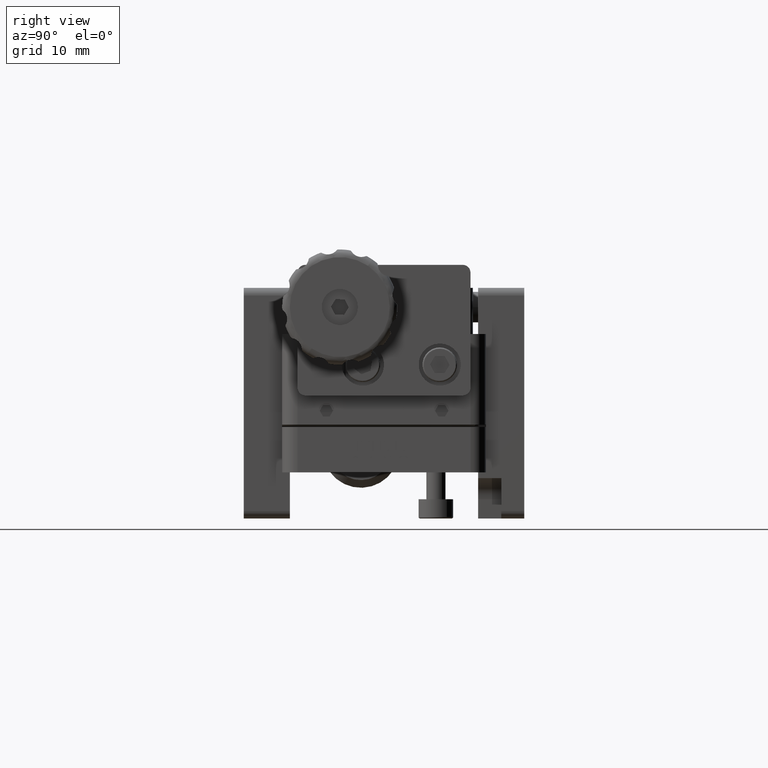
[diagram: clean part render]
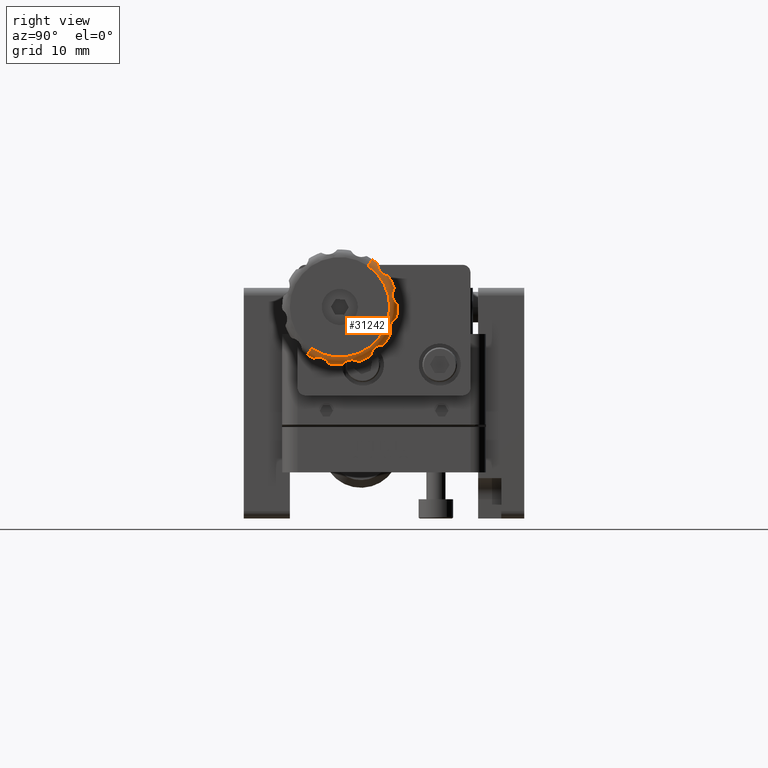
[diagram: same view with one face highlighted and labeled with its STEP entity id]
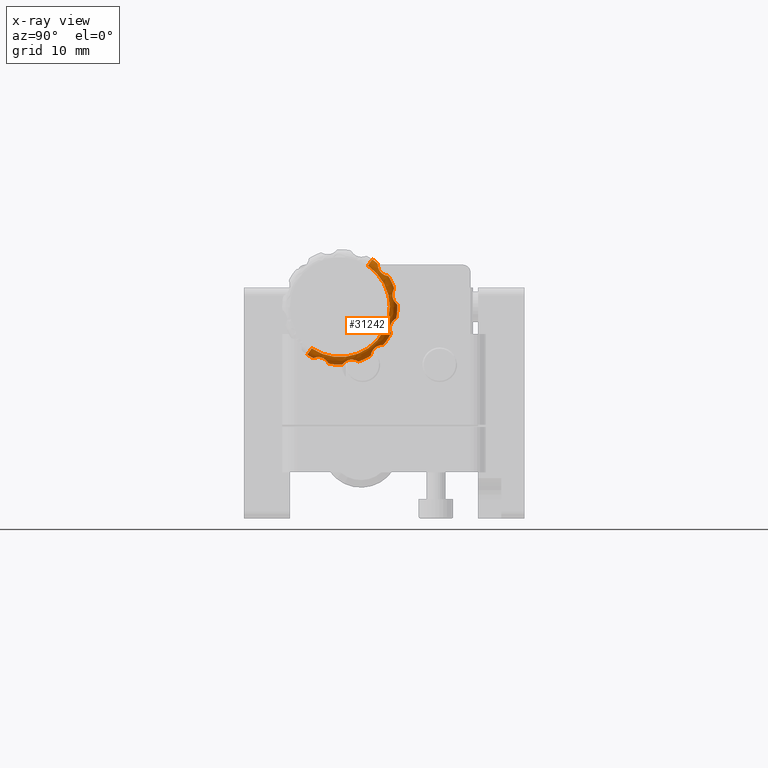
[diagram: x-ray of the same camera — body ghosted, the highlighted face saturated]
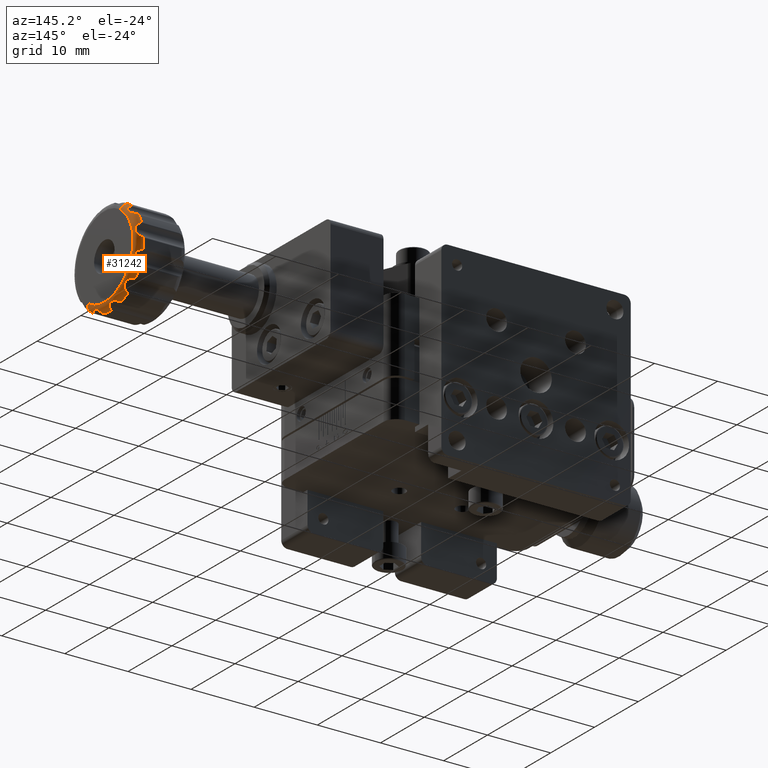
[diagram: same view with one face highlighted and labeled with its STEP entity id]
A machine part, right view. The second image highlights one B-rep face of the part: STEP entity #31242.
The next image is the same camera in x-ray: the body ghosted, the highlighted face saturated — about 0% of this face is hidden behind the body in this view.
A second angle (auxiliary view) of the same face is appended — the face is thin or edge-on in the first view.
In plain terms, the highlighted toroidal blend (fillet) surface has major radius 6.5 mm and minor (blend) radius 1 mm.
Its self-contained STEP definition (entity closure, byte-faithful):
#7 = AXIS2_PLACEMENT_3D ( 'NONE', #10917, #28545, #18712 ) ;
#24 = B_SPLINE_CURVE_WITH_KNOTS ( 'NONE', 3,
 ( #25732, #30857, #5509, #28514 ),
 .UNSPECIFIED., .F., .F.,
 ( 4, 4 ),
 ( 6.448693071016901200E-016, 0.0004984791478706792700 ),
 .UNSPECIFIED. ) ;
#126 = ORIENTED_EDGE ( 'NONE', *, *, #20117, .F. ) ;
#325 = CARTESIAN_POINT ( 'NONE',  ( 50.16904537260126800, -23.59500062500780300, 35.44446664674148200 ) ) ;
#349 = CARTESIAN_POINT ( 'NONE',  ( 50.60049018777925100, -19.52517849025036500, 39.17502042245652700 ) ) ;
#366 = CARTESIAN_POINT ( 'NONE',  ( 50.16904537260126800, -21.29999626743064300, 48.23051196961988300 ) ) ;
#799 = CARTESIAN_POINT ( 'NONE',  ( 50.46011198752854200, -25.77048156428244100, 35.03953087366645000 ) ) ;
#804 = VERTEX_POINT ( 'NONE', #17169 ) ;
#833 = CARTESIAN_POINT ( 'NONE',  ( 50.99632460469376100, -28.10303961517667700, 35.71696808971677200 ) ) ;
#952 = CARTESIAN_POINT ( 'NONE',  ( 50.39214108293384700, -27.57960638557849400, 35.16543595120887700 ) ) ;
#1089 = CARTESIAN_POINT ( 'NONE',  ( 50.60049018777726100, -20.63036654416813000, 37.55510338841912000 ) ) ;
#1262 = EDGE_CURVE ( 'NONE', #18862, #32531, #8280, .T. ) ;
#1292 = ORIENTED_EDGE ( 'NONE', *, *, #3401, .F. ) ;
#1309 = CARTESIAN_POINT ( 'NONE',  ( 50.39214108293419500, -19.83491864237948500, 46.51712542525034200 ) ) ;
#1420 = EDGE_CURVE ( 'NONE', #32092, #22801, #20999, .T. ) ;
#1453 = CARTESIAN_POINT ( 'NONE',  ( 51.01193507681020400, -24.45045151661879500, 35.65487715488198000 ) ) ;
#1462 = CARTESIAN_POINT ( 'NONE',  ( 50.60049018777726100, -19.10203308773572300, 44.79774541413245000 ) ) ;
#1615 = EDGE_CURVE ( 'NONE', #17596, #22311, #6144, .T. ) ;
#1691 = AXIS2_PLACEMENT_3D ( 'NONE', #2994, #10948, #15629 ) ;
#1770 = ORIENTED_EDGE ( 'NONE', *, *, #31752, .F. ) ;
#1851 = ORIENTED_EDGE ( 'NONE', *, *, #29030, .F. ) ;
#1938 = CARTESIAN_POINT ( 'NONE',  ( 50.96981170311330100, -27.99951427853631000, 35.64633795068569800 ) ) ;
#2263 = CARTESIAN_POINT ( 'NONE',  ( 50.60049018777726100, -18.89586977502315800, 40.97166654356745100 ) ) ;
#2339 = EDGE_CURVE ( 'NONE', #13054, #32531, #22846, .T. ) ;
#2373 = CARTESIAN_POINT ( 'NONE',  ( 51.01148057882246400, -19.62316622734966400, 39.80474111995735600 ) ) ;
#2408 = CARTESIAN_POINT ( 'NONE',  ( 50.97247948405712500, -28.95211478044966900, 35.98321542112125800 ) ) ;
#2455 = ORIENTED_EDGE ( 'NONE', *, *, #13582, .F. ) ;
#2458 = B_SPLINE_CURVE_WITH_KNOTS ( 'NONE', 3,
 ( #11884, #24601, #4579, #19453 ),
 .UNSPECIFIED., .F., .F.,
 ( 4, 4 ),
 ( -6.324575239446234800E-006, 0.0004951179910539752100 ),
 .UNSPECIFIED. ) ;
#2481 = CARTESIAN_POINT ( 'NONE',  ( 50.68224101903884800, -25.67693293768911300, 35.15134793966640100 ) ) ;
#2496 = B_SPLINE_CURVE_WITH_KNOTS ( 'NONE', 3,
 ( #8406, #26415, #31445, #3409 ),
 .UNSPECIFIED., .F., .F.,
 ( 4, 4 ),
 ( 6.379727130213211900E-016, 0.0004984791478706591000 ),
 .UNSPECIFIED. ) ;
#2597 = CARTESIAN_POINT ( 'NONE',  ( 50.75280766084129200, -18.99867417246400300, 40.90572252291493500 ) ) ;
#2650 = VERTEX_POINT ( 'NONE', #26854 ) ;
#2885 = ORIENTED_EDGE ( 'NONE', *, *, #21555, .T. ) ;
#2994 = CARTESIAN_POINT ( 'NONE',  ( 50.16904537260126800, -29.80178302574162400, 37.13060115729425100 ) ) ;
#3335 = EDGE_CURVE ( 'NONE', #30368, #27272, #12223, .T. ) ;
#3341 = CARTESIAN_POINT ( 'NONE',  ( 50.75239962412954500, -22.04988960691955300, 36.43316951863126700 ) ) ;
#3383 = DIRECTION ( 'NONE',  ( 0.0000000000000000000, -0.5635801884623344900, -0.8260613604162584400 ) ) ;
#3401 = EDGE_CURVE ( 'NONE', #13054, #27008, #10195, .T. ) ;
#3403 = CARTESIAN_POINT ( 'NONE',  ( 50.60049018777925100, -22.07368693893332800, 36.31381656353986600 ) ) ;
#3409 = CARTESIAN_POINT ( 'NONE',  ( 50.16904537260126800, -18.75648509170192900, 41.17497861636135100 ) ) ;
#3481 = CARTESIAN_POINT ( 'NONE',  ( 50.16904537260126800, -22.47524057573133800, 47.86939884270565700 ) ) ;
#3504 = CARTESIAN_POINT ( 'NONE',  ( 50.68165190946965700, -21.19239822335953600, 47.95489067153712900 ) ) ;
#3576 = CARTESIAN_POINT ( 'NONE',  ( 50.86793537588895500, -22.00258540970582600, 36.58269632667309400 ) ) ;
#3616 = CARTESIAN_POINT ( 'NONE',  ( 50.31494449543652100, -19.50428975326653700, 39.00089300807402300 ) ) ;
#4035 = CARTESIAN_POINT ( 'NONE',  ( 51.03498207220286500, -25.03077949484595200, 35.58532836630456600 ) ) ;
#4264 = CARTESIAN_POINT ( 'NONE',  ( 50.60049018777925100, -18.74870736138999700, 42.92714987402597200 ) ) ;
#4312 = B_SPLINE_CURVE_WITH_KNOTS ( 'NONE', 3,
 ( #12982, #27829, #7690, #20109 ),
 .UNSPECIFIED., .F., .F.,
 ( 4, 4 ),
 ( 6.236614380664838700E-016, 0.0004984791478706523800 ),
 .UNSPECIFIED. ) ;
#4313 = DIRECTION ( 'NONE',  ( 1.000000000000000000, 0.0000000000000000000, 0.0000000000000000000 ) ) ;
#4376 = ORIENTED_EDGE ( 'NONE', *, *, #14384, .F. ) ;
#4524 = CARTESIAN_POINT ( 'NONE',  ( 50.60049018777925100, -29.46349137827985500, 35.88666668951376700 ) ) ;
#4579 = CARTESIAN_POINT ( 'NONE',  ( 50.46011198752855600, -22.08955370343979800, 36.22305933067266200 ) ) ;
#4598 = CARTESIAN_POINT ( 'NONE',  ( 50.75280766084127700, -23.94927778243723200, 35.51958049647743100 ) ) ;
#4941 = CARTESIAN_POINT ( 'NONE',  ( 50.91226829902935700, -19.61066742712300800, 39.53038542861334300 ) ) ;
#4980 = AXIS2_PLACEMENT_3D ( 'NONE', #6727, #29625, #22032 ) ;
#5095 = ORIENTED_EDGE ( 'NONE', *, *, #9555, .T. ) ;
#5132 = VERTEX_POINT ( 'NONE', #30910 ) ;
#5466 = AXIS2_PLACEMENT_3D ( 'NONE', #25445, #20293, #30444 ) ;
#5486 = EDGE_CURVE ( 'NONE', #17321, #20948, #21605, .T. ) ;
#5509 = CARTESIAN_POINT ( 'NONE',  ( 50.31408226279491200, -19.05548231788506200, 44.96723871375557700 ) ) ;
#5554 = B_SPLINE_CURVE_WITH_KNOTS ( 'NONE', 3,
 ( #11301, #21461, #21564, #1309 ),
 .UNSPECIFIED., .F., .F.,
 ( 4, 4 ),
 ( -6.324575239399733500E-006, 0.0002498727217918352800 ),
 .UNSPECIFIED. ) ;
#5701 = DIRECTION ( 'NONE',  ( 0.0000000000000000000, 0.5635801884623296000, 0.8260613604162615500 ) ) ;
#5772 = FACE_OUTER_BOUND ( 'NONE', #30901, .T. ) ;
#5801 = CARTESIAN_POINT ( 'NONE',  ( 50.60049018777726100, -23.84076638660398500, 35.46352128699915300 ) ) ;
#5915 = CARTESIAN_POINT ( 'NONE',  ( 51.01193507681024600, -21.25404728901198200, 37.41597986616149300 ) ) ;
#5954 = CARTESIAN_POINT ( 'NONE',  ( 51.03498207220286500, -20.70409666007392600, 46.91666013434156900 ) ) ;
#6021 = CIRCLE ( 'NONE', #28354, 7.500000000000000900 ) ;
#6144 = B_SPLINE_CURVE_WITH_KNOTS ( 'NONE', 3,
 ( #2263, #20137, #2597, #25507, #7382, #9918, #30282, #15013, #2373, #4941, #18024, #15562, #28392, #349 ),
 .UNSPECIFIED., .F., .F.,
 ( 4, 2, 2, 2, 2, 2, 4 ),
 ( 0.0004549188434785094900, 0.0007454011220209221500, 0.001035883400563334900, 0.001616847957648188400, 0.002197812514733041700, 0.002488294793275478100, 0.002778777071817914500 ),
 .UNSPECIFIED. ) ;
#6155 = CARTESIAN_POINT ( 'NONE',  ( 50.86829444202244600, -21.16343476437226600, 47.73105611675166000 ) ) ;
#6364 = CARTESIAN_POINT ( 'NONE',  ( 51.16904537260126800, -22.47524057573133800, 47.86939884270565700 ) ) ;
#6390 = CARTESIAN_POINT ( 'NONE',  ( 50.68165190946965000, -19.12760645695630800, 44.75101710772937500 ) ) ;
#6489 = CARTESIAN_POINT ( 'NONE',  ( 50.60049018777925100, -19.52517849025036500, 39.17502042245652700 ) ) ;
#6627 = CIRCLE ( 'NONE', #4980, 7.499999999999999100 ) ;
#6723 = CARTESIAN_POINT ( 'NONE',  ( 50.75280766084130600, -19.15809229721396900, 44.68923401829923100 ) ) ;
#6727 = CARTESIAN_POINT ( 'NONE',  ( 50.16904537260126800, -26.13851180073648500, 42.49999999999995700 ) ) ;
#6907 = CARTESIAN_POINT ( 'NONE',  ( 50.16904537260126800, -19.08297844747804100, 45.04351117572864600 ) ) ;
#7080 = CARTESIAN_POINT ( 'NONE',  ( 50.16904537260126800, -26.13851180073648500, 42.49999999999995700 ) ) ;
#7161 = CARTESIAN_POINT ( 'NONE',  ( 51.01148057882242900, -25.21500167393547200, 35.50991577899113600 ) ) ;
#7188 = CARTESIAN_POINT ( 'NONE',  ( 50.31494449543745900, -18.64355347731774200, 42.78679547816566500 ) ) ;
#7305 = CARTESIAN_POINT ( 'NONE',  ( 51.03478024347618500, -28.32567299574864700, 35.84866642649171800 ) ) ;
#7382 = CARTESIAN_POINT ( 'NONE',  ( 50.91254583412553100, -19.18480918718328700, 40.74695103994014300 ) ) ;
#7529 = CARTESIAN_POINT ( 'NONE',  ( 50.16904537260126800, -18.64132128954509000, 42.70526675059696900 ) ) ;
#7690 = CARTESIAN_POINT ( 'NONE',  ( 50.31408226279511800, -20.46030565599765800, 37.59953588897454300 ) ) ;
#7798 = VERTEX_POINT ( 'NONE', #22065 ) ;
#7826 = CARTESIAN_POINT ( 'NONE',  ( 50.75239962412952400, -25.63107635509848900, 35.20165958577242500 ) ) ;
#8013 = DIRECTION ( 'NONE',  ( 0.0000000000000000000, -0.5635801884623294900, -0.8260613604162616600 ) ) ;
#8207 = EDGE_CURVE ( 'NONE', #21778, #20948, #31014, .T. ) ;
#8280 = CIRCLE ( 'NONE', #7, 7.500000000000000900 ) ;
#8393 = EDGE_CURVE ( 'NONE', #8888, #12401, #2458, .T. ) ;
#8406 = CARTESIAN_POINT ( 'NONE',  ( 50.60049018777726100, -18.89586977502315800, 40.97166654356745100 ) ) ;
#8479 = B_SPLINE_CURVE_WITH_KNOTS ( 'NONE', 3,
 ( #24165, #8929, #13985, #28861 ),
 .UNSPECIFIED., .F., .F.,
 ( 4, 4 ),
 ( 6.312200838909214400E-016, 0.0004984791478706443500 ),
 .UNSPECIFIED. ) ;
#8484 = CARTESIAN_POINT ( 'NONE',  ( 50.91226829902935700, -20.30282795566053300, 46.66847177380728300 ) ) ;
#8515 = CARTESIAN_POINT ( 'NONE',  ( 50.46010132644497000, -21.19572022634368100, 48.10026196377061300 ) ) ;
#8595 = CARTESIAN_POINT ( 'NONE',  ( 51.03515903511310400, -20.95717431147289000, 47.21054193987829000 ) ) ;
#8776 = CARTESIAN_POINT ( 'NONE',  ( 50.68165190946965000, -20.68362112919929900, 37.55388642262302300 ) ) ;
#8888 = VERTEX_POINT ( 'NONE', #10364 ) ;
#8929 = CARTESIAN_POINT ( 'NONE',  ( 50.46010132644496300, -23.75993845945979600, 35.41928594907873400 ) ) ;
#8942 = TOROIDAL_SURFACE ( 'NONE', #15636, 6.500000000000000000, 1.000000000000000000 ) ;
#8975 = EDGE_CURVE ( 'NONE', #30143, #27008, #17718, .T. ) ;
#8993 = CARTESIAN_POINT ( 'NONE',  ( 50.16904537260126800, -19.54312098573453900, 38.92917096497350800 ) ) ;
#9025 = CARTESIAN_POINT ( 'NONE',  ( 50.91254583412550300, -24.17984542744953600, 35.60139240627071200 ) ) ;
#9232 = CIRCLE ( 'NONE', #15101, 6.500000000000000000 ) ;
#9246 = CARTESIAN_POINT ( 'NONE',  ( 50.86793537588896900, -18.94601330221312800, 43.12316548615154900 ) ) ;
#9371 = CARTESIAN_POINT ( 'NONE',  ( 50.99632460469376100, -28.10303961517667700, 35.71696808971677200 ) ) ;
#9555 = EDGE_CURVE ( 'NONE', #14317, #7798, #23061, .T. ) ;
#9590 = CARTESIAN_POINT ( 'NONE',  ( 50.70764958488030800, -27.70339330390199400, 35.31744748100354100 ) ) ;
#9659 = ORIENTED_EDGE ( 'NONE', *, *, #8207, .T. ) ;
#9684 = EDGE_CURVE ( 'NONE', #30368, #22311, #27957, .T. ) ;
#9685 = DIRECTION ( 'NONE',  ( 0.0000000000000000000, -0.5635801884622930700, -0.8260613604162866400 ) ) ;
#9877 = CARTESIAN_POINT ( 'NONE',  ( 50.16904537260126800, -26.13851180073648500, 42.49999999999995700 ) ) ;
#9918 = CARTESIAN_POINT ( 'NONE',  ( 51.01193507681025400, -19.36643138278031600, 40.53934166660644700 ) ) ;
#9979 = DIRECTION ( 'NONE',  ( 0.0000000000000000000, -0.5635801884623238300, -0.8260613604162656600 ) ) ;
#10122 = CARTESIAN_POINT ( 'NONE',  ( 50.91226829902932800, -25.44635127219890300, 35.36191365480604500 ) ) ;
#10193 = EDGE_CURVE ( 'NONE', #18862, #13664, #10310, .T. ) ;
#10195 = B_SPLINE_CURVE_WITH_KNOTS ( 'NONE', 3,
 ( #21366, #3504, #16011, #6155, #11110, #21142, #8595, #5954, #21251, #8484, #11322, #26493, #11012, #11215 ),
 .UNSPECIFIED., .F., .F.,
 ( 4, 2, 2, 2, 2, 2, 4 ),
 ( 0.0004549188434784849800, 0.0007454011220209078400, 0.001035883400563330600, 0.001616847957648180200, 0.002197812514733029600, 0.002488294793275449500, 0.002778777071817869900 ),
 .UNSPECIFIED. ) ;
#10310 = CIRCLE ( 'NONE', #10842, 1.000000000000000900 ) ;
#10364 = CARTESIAN_POINT ( 'NONE',  ( 50.16904537260126800, -22.21215032457145400, 36.10987593559505600 ) ) ;
#10426 = CIRCLE ( 'NONE', #5466, 7.500000000000000900 ) ;
#10428 = CARTESIAN_POINT ( 'NONE',  ( 50.16904537260126800, -29.70934083576291900, 35.90460918499796600 ) ) ;
#10478 = CARTESIAN_POINT ( 'NONE',  ( 50.16904537260126800, -20.40799983111652300, 37.66148446669408400 ) ) ;
#10598 = ORIENTED_EDGE ( 'NONE', *, *, #25245, .T. ) ;
#10842 = AXIS2_PLACEMENT_3D ( 'NONE', #3481, #18244, #5701 ) ;
#10886 = EDGE_CURVE ( 'NONE', #8888, #27876, #6627, .T. ) ;
#10917 = CARTESIAN_POINT ( 'NONE',  ( 50.16904537260126800, -26.13851180073648500, 42.49999999999995700 ) ) ;
#10948 = DIRECTION ( 'NONE',  ( 0.0000000000000000000, -0.8260613604162616600, 0.5635801884623298200 ) ) ;
#11012 = CARTESIAN_POINT ( 'NONE',  ( 50.68224101903884100, -20.00518186443844800, 46.57406505141569400 ) ) ;
#11110 = CARTESIAN_POINT ( 'NONE',  ( 50.91254583412551700, -21.14347556047025400, 47.64555863366943100 ) ) ;
#11215 = CARTESIAN_POINT ( 'NONE',  ( 50.60049018777925100, -19.95232836427639400, 46.56482486180307500 ) ) ;
#11221 = CARTESIAN_POINT ( 'NONE',  ( 50.16904537260126800, -19.54312098573453900, 38.92917096497350800 ) ) ;
#11283 = CARTESIAN_POINT ( 'NONE',  ( 50.60049018777925100, -22.07368693893332800, 36.31381656353986600 ) ) ;
#11301 = CARTESIAN_POINT ( 'NONE',  ( 50.16904537260126800, -19.74838773633161900, 46.42636147616499900 ) ) ;
#11322 = CARTESIAN_POINT ( 'NONE',  ( 50.86793537588895500, -20.22120812740962500, 46.63592639103062300 ) ) ;
#11450 = CARTESIAN_POINT ( 'NONE',  ( 50.46011198752855600, -19.49354089495522800, 39.08848897096312000 ) ) ;
#11453 = CARTESIAN_POINT ( 'NONE',  ( 51.01193507681023900, -19.29338895561854600, 44.18806028411764000 ) ) ;
#11538 = CARTESIAN_POINT ( 'NONE',  ( 50.60049018777726100, -23.84076638660398500, 35.46352128699915300 ) ) ;
#11772 = CARTESIAN_POINT ( 'NONE',  ( 50.91254583412551700, -19.23990420700726000, 44.45866637328691700 ) ) ;
#11884 = CARTESIAN_POINT ( 'NONE',  ( 50.16904537260126800, -22.21215032457145400, 36.10987593559505600 ) ) ;
#12223 = CIRCLE ( 'NONE', #30772, 7.499999999999997300 ) ;
#12356 = CARTESIAN_POINT ( 'NONE',  ( 50.46011198752856300, -18.67804267440304100, 42.86803023645388300 ) ) ;
#12377 = CARTESIAN_POINT ( 'NONE',  ( 50.16904537260126800, -26.13851180073648500, 42.49999999999995700 ) ) ;
#12401 = VERTEX_POINT ( 'NONE', #3403 ) ;
#12504 = CARTESIAN_POINT ( 'NONE',  ( 50.60049018777726100, -18.89586977502315800, 40.97166654356745100 ) ) ;
#12831 = ORIENTED_EDGE ( 'NONE', *, *, #21607, .F. ) ;
#12862 = CARTESIAN_POINT ( 'NONE',  ( 51.16904537260126800, -26.13851180073648500, 42.49999999999995700 ) ) ;
#12982 = CARTESIAN_POINT ( 'NONE',  ( 50.60049018777726100, -20.63036654416813000, 37.55510338841912000 ) ) ;
#13054 = VERTEX_POINT ( 'NONE', #24786 ) ;
#13058 = CARTESIAN_POINT ( 'NONE',  ( 50.16904537260126800, -21.29999626743064300, 48.23051196961988300 ) ) ;
#13113 = CARTESIAN_POINT ( 'NONE',  ( 50.46264209120813100, -27.61345703991064900, 35.18853055297047000 ) ) ;
#13348 = CARTESIAN_POINT ( 'NONE',  ( 50.16904537260126800, -25.93324505013944800, 35.00280948880848100 ) ) ;
#13457 = CARTESIAN_POINT ( 'NONE',  ( 50.31494449543730200, -25.85171632257047100, 35.00504167658114300 ) ) ;
#13582 = EDGE_CURVE ( 'NONE', #22801, #26323, #22006, .T. ) ;
#13621 = ORIENTED_EDGE ( 'NONE', *, *, #8393, .T. ) ;
#13664 = VERTEX_POINT ( 'NONE', #6364 ) ;
#13871 = CARTESIAN_POINT ( 'NONE',  ( 50.16904537260126800, -26.13851180073648500, 42.49999999999995700 ) ) ;
#13985 = CARTESIAN_POINT ( 'NONE',  ( 50.31408226279528200, -23.67127308698023900, 35.41697051714869800 ) ) ;
#14010 = EDGE_CURVE ( 'NONE', #27412, #27272, #4312, .T. ) ;
#14035 = EDGE_CURVE ( 'NONE', #804, #13664, #9232, .T. ) ;
#14317 = VERTEX_POINT ( 'NONE', #16959 ) ;
#14384 = EDGE_CURVE ( 'NONE', #27009, #22941, #6021, .T. ) ;
#14803 = CARTESIAN_POINT ( 'NONE',  ( 50.71002324534656200, -29.39597338445412700, 35.91135259188730100 ) ) ;
#15013 = CARTESIAN_POINT ( 'NONE',  ( 51.03498207220289400, -19.59636435418341400, 40.00198850064612800 ) ) ;
#15062 = DIRECTION ( 'NONE',  ( -1.000000000000000000, -0.0000000000000000000, -0.0000000000000000000 ) ) ;
#15101 = AXIS2_PLACEMENT_3D ( 'NONE', #12862, #15435, #8013 ) ;
#15435 = DIRECTION ( 'NONE',  ( 1.000000000000000000, 0.0000000000000000000, 0.0000000000000000000 ) ) ;
#15561 = CARTESIAN_POINT ( 'NONE',  ( 50.53183409068270700, -27.64342924034829700, 35.21885914806185300 ) ) ;
#15562 = CARTESIAN_POINT ( 'NONE',  ( 50.75239962412955200, -19.56424587372985300, 39.29028177958930700 ) ) ;
#15629 = DIRECTION ( 'NONE',  ( 0.0000000000000000000, -0.5635801884623296000, -0.8260613604162615500 ) ) ;
#15636 = AXIS2_PLACEMENT_3D ( 'NONE', #7080, #4313, #24969 ) ;
#15730 = EDGE_CURVE ( 'NONE', #27009, #5132, #22249, .T. ) ;
#15797 = CARTESIAN_POINT ( 'NONE',  ( 50.46264209120903400, -19.86876929671349100, 46.54022002700988700 ) ) ;
#15902 = B_SPLINE_CURVE_WITH_KNOTS ( 'NONE', 3,
 ( #10428, #22673, #20092, #32937 ),
 .UNSPECIFIED., .F., .F.,
 ( 4, 4 ),
 ( -6.324575239444755900E-006, 0.0004951179910539885500 ),
 .UNSPECIFIED. ) ;
#15913 = ORIENTED_EDGE ( 'NONE', *, *, #1420, .F. ) ;
#15958 = CARTESIAN_POINT ( 'NONE',  ( 50.16904537260126800, -25.93324505013944800, 35.00280948880848100 ) ) ;
#16011 = CARTESIAN_POINT ( 'NONE',  ( 50.75280766084129900, -21.18790819076330900, 47.88614202643750400 ) ) ;
#16080 = CARTESIAN_POINT ( 'NONE',  ( 50.86829444202244600, -20.90745568398477200, 37.52492296363575300 ) ) ;
#16127 = VERTEX_POINT ( 'NONE', #22360 ) ;
#16436 = ORIENTED_EDGE ( 'NONE', *, *, #28814, .T. ) ;
#16499 = CARTESIAN_POINT ( 'NONE',  ( 50.24315308279528100, -27.50430860438784800, 35.12529218936183600 ) ) ;
#16520 = CARTESIAN_POINT ( 'NONE',  ( 50.91254583412553800, -20.99295316706701100, 37.50496375973372700 ) ) ;
#16672 = CARTESIAN_POINT ( 'NONE',  ( 51.03498207220288700, -19.22384016704111400, 43.60773230589047200 ) ) ;
#16794 = B_SPLINE_CURVE_WITH_KNOTS ( 'NONE', 3,
 ( #1462, #6390, #6723, #24147, #11772, #11453, #26831, #16672, #19228, #24480, #9246, #29616, #16892, #4264 ),
 .UNSPECIFIED., .F., .F.,
 ( 4, 2, 2, 2, 2, 2, 4 ),
 ( 0.0004549188434784831400, 0.0007454011220208974300, 0.001035883400563311700, 0.001616847957648121400, 0.002197812514732931100, 0.002488294793275347600, 0.002778777071817764000 ),
 .UNSPECIFIED. ) ;
#16892 = CARTESIAN_POINT ( 'NONE',  ( 50.68224101903885500, -18.78985974040292800, 42.96157886304727900 ) ) ;
#16959 = CARTESIAN_POINT ( 'NONE',  ( 50.39214108293384700, -27.57960638557849400, 35.16543595120887700 ) ) ;
#16992 = CIRCLE ( 'NONE', #1691, 1.000000000000000900 ) ;
#17169 = CARTESIAN_POINT ( 'NONE',  ( 51.16904537260126800, -29.80178302574162100, 37.13060115729424400 ) ) ;
#17321 = VERTEX_POINT ( 'NONE', #5801 ) ;
#17522 = CARTESIAN_POINT ( 'NONE',  ( 50.16904537260126800, -21.91166038726900900, 48.69546020312191800 ) ) ;
#17596 = VERTEX_POINT ( 'NONE', #12504 ) ;
#17612 = CARTESIAN_POINT ( 'NONE',  ( 50.93036590694196500, -29.07844181169656700, 35.97648233799481000 ) ) ;
#17718 = B_SPLINE_CURVE_WITH_KNOTS ( 'NONE', 3,
 ( #25940, #15797, #28509, #18250 ),
 .UNSPECIFIED., .F., .F.,
 ( 4, 4 ),
 ( 0.0002498727217918352800, 0.0004951179910539987400 ),
 .UNSPECIFIED. ) ;
#18024 = CARTESIAN_POINT ( 'NONE',  ( 50.86793537588896900, -19.59804264125805800, 39.44342789250718800 ) ) ;
#18244 = DIRECTION ( 'NONE',  ( 0.0000000000000000000, 0.8260613604162615500, -0.5635801884623299300 ) ) ;
#18250 = CARTESIAN_POINT ( 'NONE',  ( 50.60049018777925100, -19.95232836427639400, 46.56482486180307500 ) ) ;
#18260 = VERTEX_POINT ( 'NONE', #6907 ) ;
#18376 = ORIENTED_EDGE ( 'NONE', *, *, #25003, .F. ) ;
#18552 = CARTESIAN_POINT ( 'NONE',  ( 50.91226829902935700, -21.97004002692914800, 36.66431615492402300 ) ) ;
#18712 = DIRECTION ( 'NONE',  ( 0.0000000000000000000, -0.5635801884623296000, -0.8260613604162616600 ) ) ;
#18758 = CARTESIAN_POINT ( 'NONE',  ( 50.75280766084129900, -20.75236977429893800, 37.54939639002677900 ) ) ;
#18855 = CARTESIAN_POINT ( 'NONE',  ( 50.68224101903884800, -22.06444674932076200, 36.36667006370191800 ) ) ;
#18862 = VERTEX_POINT ( 'NONE', #17522 ) ;
#18932 = ORIENTED_EDGE ( 'NONE', *, *, #1262, .F. ) ;
#19219 = CARTESIAN_POINT ( 'NONE',  ( 51.03515903511306800, -24.64973155984161600, 35.65755913877777800 ) ) ;
#19228 = CARTESIAN_POINT ( 'NONE',  ( 51.01148057882245000, -19.14842757972772000, 43.42351012680094900 ) ) ;
#19453 = CARTESIAN_POINT ( 'NONE',  ( 50.60049018777925100, -22.07368693893332800, 36.31381656353986600 ) ) ;
#19687 = CARTESIAN_POINT ( 'NONE',  ( 50.16904537260126800, -18.75648509170192900, 41.17497861636135100 ) ) ;
#19800 = CARTESIAN_POINT ( 'NONE',  ( 50.68165190946963600, -23.88749469300706400, 35.48909465621977000 ) ) ;
#19939 = CARTESIAN_POINT ( 'NONE',  ( 51.02322949854530500, -28.20809557009735600, 35.78864249274591500 ) ) ;
#19948 = DIRECTION ( 'NONE',  ( 0.0000000000000000000, -0.5635801884623092800, -0.8260613604162755400 ) ) ;
#19989 = ORIENTED_EDGE ( 'NONE', *, *, #9684, .T. ) ;
#20045 = CARTESIAN_POINT ( 'NONE',  ( 50.79919677825972700, -29.30114763727838700, 35.94017054574771200 ) ) ;
#20092 = CARTESIAN_POINT ( 'NONE',  ( 50.46011198752854200, -29.55002282977325500, 35.85502909421862900 ) ) ;
#20109 = CARTESIAN_POINT ( 'NONE',  ( 50.16904537260126800, -20.40799983111652300, 37.66148446669408400 ) ) ;
#20117 = EDGE_CURVE ( 'NONE', #27412, #12401, #23662, .T. ) ;
#20137 = CARTESIAN_POINT ( 'NONE',  ( 50.68165190946966400, -18.94138111563008000, 40.94398532775690600 ) ) ;
#20293 = DIRECTION ( 'NONE',  ( -1.000000000000000000, -0.0000000000000000000, -0.0000000000000000000 ) ) ;
#20454 = ORIENTED_EDGE ( 'NONE', *, *, #5486, .F. ) ;
#20456 = CARTESIAN_POINT ( 'NONE',  ( 50.86793537588894100, -25.51534631458485700, 35.30750150147656500 ) ) ;
#20529 = CIRCLE ( 'NONE', #30789, 7.500000000000000900 ) ;
#20570 = CARTESIAN_POINT ( 'NONE',  ( 50.16904537260126800, -30.36536321420395300, 36.30453979687798900 ) ) ;
#20722 = ORIENTED_EDGE ( 'NONE', *, *, #21050, .T. ) ;
#20948 = VERTEX_POINT ( 'NONE', #27857 ) ;
#20999 = B_SPLINE_CURVE_WITH_KNOTS ( 'NONE', 3,
 ( #22162, #9590, #32536, #27408, #1938, #9371 ),
 .UNSPECIFIED., .F., .F.,
 ( 4, 2, 4 ),
 ( 0.0004549188434784918200, 0.0008384482362595471800, 0.001221977629040602600 ),
 .UNSPECIFIED. ) ;
#21050 = EDGE_CURVE ( 'NONE', #32092, #14317, #27771, .T. ) ;
#21142 = CARTESIAN_POINT ( 'NONE',  ( 51.01193507681021800, -21.05449166689801600, 47.38446451172444500 ) ) ;
#21251 = CARTESIAN_POINT ( 'NONE',  ( 51.01148057882245700, -20.54667635415063000, 46.79482534096618500 ) ) ;
#21366 = CARTESIAN_POINT ( 'NONE',  ( 50.60049018777726100, -21.19361518915565400, 48.00814525656832600 ) ) ;
#21461 = CARTESIAN_POINT ( 'NONE',  ( 50.24358822839894100, -19.77020276275769100, 46.46186526922559100 ) ) ;
#21555 = EDGE_CURVE ( 'NONE', #22457, #26323, #15902, .T. ) ;
#21564 = CARTESIAN_POINT ( 'NONE',  ( 50.31849167957373900, -19.79955630422271200, 46.49299947752349000 ) ) ;
#21605 = B_SPLINE_CURVE_WITH_KNOTS ( 'NONE', 3,
 ( #11538, #19800, #4598, #22372, #9025, #1453, #19219, #4035, #7161, #10122, #20456, #7826, #2481, #30510 ),
 .UNSPECIFIED., .F., .F.,
 ( 4, 2, 2, 2, 2, 2, 4 ),
 ( 0.0004549188434785099200, 0.0007454011220209362400, 0.001035883400563362700, 0.001616847957648219200, 0.002197812514733075100, 0.002488294793275503700, 0.002778777071817931900 ),
 .UNSPECIFIED. ) ;
#21607 = EDGE_CURVE ( 'NONE', #31965, #804, #16992, .T. ) ;
#21778 = VERTEX_POINT ( 'NONE', #15958 ) ;
#21788 = ORIENTED_EDGE ( 'NONE', *, *, #22520, .F. ) ;
#22006 = B_SPLINE_CURVE_WITH_KNOTS ( 'NONE', 3,
 ( #22521, #19939, #7305, #22404, #32571, #2408, #17612, #20045, #14803, #4524 ),
 .UNSPECIFIED., .F., .F.,
 ( 4, 2, 2, 2, 4 ),
 ( 0.001221977629040602600, 0.001611177489734928900, 0.002000377350429255300, 0.002389577211123582100, 0.002778777071817908500 ),
 .UNSPECIFIED. ) ;
#22032 = DIRECTION ( 'NONE',  ( 0.0000000000000000000, -0.5635801884623606900, -0.8260613604162405600 ) ) ;
#22065 = CARTESIAN_POINT ( 'NONE',  ( 50.16904537260126800, -27.46353318437508400, 35.11797329096532400 ) ) ;
#22162 = CARTESIAN_POINT ( 'NONE',  ( 50.60049018777726100, -27.66684525716894800, 35.25735797428654200 ) ) ;
#22220 = EDGE_CURVE ( 'NONE', #2650, #30143, #5554, .T. ) ;
#22249 = B_SPLINE_CURVE_WITH_KNOTS ( 'NONE', 3,
 ( #7529, #7188, #12356, #24960 ),
 .UNSPECIFIED., .F., .F.,
 ( 4, 4 ),
 ( -6.324575239412069700E-006, 0.0004951179910540049200 ),
 .UNSPECIFIED. ) ;
#22311 = VERTEX_POINT ( 'NONE', #29051 ) ;
#22360 = CARTESIAN_POINT ( 'NONE',  ( 50.60049018777726100, -19.10203308773572300, 44.79774541413245000 ) ) ;
#22372 = CARTESIAN_POINT ( 'NONE',  ( 50.86829444202245300, -24.09582283318969300, 35.57592884234806300 ) ) ;
#22404 = CARTESIAN_POINT ( 'NONE',  ( 51.03535097983736100, -28.57054929224773700, 35.93530147454411100 ) ) ;
#22457 = VERTEX_POINT ( 'NONE', #30009 ) ;
#22520 = EDGE_CURVE ( 'NONE', #2650, #18260, #32521, .T. ) ;
#22521 = CARTESIAN_POINT ( 'NONE',  ( 50.99632460469376100, -28.10303961517667700, 35.71696808971677200 ) ) ;
#22673 = CARTESIAN_POINT ( 'NONE',  ( 50.31494449543745200, -29.63761879266385800, 35.86577795253072800 ) ) ;
#22801 = VERTEX_POINT ( 'NONE', #833 ) ;
#22845 = CARTESIAN_POINT ( 'NONE',  ( 50.39214108293419500, -19.83491864237948500, 46.51712542525034200 ) ) ;
#22846 = B_SPLINE_CURVE_WITH_KNOTS ( 'NONE', 3,
 ( #31217, #8515, #25873, #13058 ),
 .UNSPECIFIED., .F., .F.,
 ( 4, 4 ),
 ( 6.471518395779748400E-016, 0.0004984791478706585600 ),
 .UNSPECIFIED. ) ;
#22931 = ORIENTED_EDGE ( 'NONE', *, *, #10193, .T. ) ;
#22941 = VERTEX_POINT ( 'NONE', #19687 ) ;
#23061 = B_SPLINE_CURVE_WITH_KNOTS ( 'NONE', 3,
 ( #952, #31804, #16499, #29343 ),
 .UNSPECIFIED., .F., .F.,
 ( 4, 4 ),
 ( 0.0002437774083433654800, 0.0004984791478706420800 ),
 .UNSPECIFIED. ) ;
#23661 = CARTESIAN_POINT ( 'NONE',  ( 51.01148057882245700, -21.84368645977025400, 36.90816455341411700 ) ) ;
#23662 = B_SPLINE_CURVE_WITH_KNOTS ( 'NONE', 3,
 ( #1089, #8776, #18758, #16080, #16520, #5915, #23983, #28798, #23661, #18552, #3576, #3341, #18855, #11283 ),
 .UNSPECIFIED., .F., .F.,
 ( 4, 2, 2, 2, 2, 2, 4 ),
 ( 0.0004549188434784813500, 0.0007454011220208952600, 0.001035883400563309300, 0.001616847957648145700, 0.002197812514732981900, 0.002488294793275391800, 0.002778777071817801300 ),
 .UNSPECIFIED. ) ;
#23705 = CARTESIAN_POINT ( 'NONE',  ( 50.60049018777925100, -25.71136192671039200, 35.11019556065339500 ) ) ;
#23854 = CARTESIAN_POINT ( 'NONE',  ( 50.60049018777925100, -19.95232836427639400, 46.56482486180307500 ) ) ;
#23922 = DIRECTION ( 'NONE',  ( -1.000000000000000000, -0.0000000000000000000, -0.0000000000000000000 ) ) ;
#23983 = CARTESIAN_POINT ( 'NONE',  ( 51.03515903511312500, -21.42796986085814500, 37.31866251073636700 ) ) ;
#24147 = CARTESIAN_POINT ( 'NONE',  ( 50.86829444202244600, -19.21444064308460400, 44.54268896754675900 ) ) ;
#24165 = CARTESIAN_POINT ( 'NONE',  ( 50.60049018777726100, -23.84076638660398500, 35.46352128699915300 ) ) ;
#24480 = CARTESIAN_POINT ( 'NONE',  ( 50.91226829902935700, -19.00042545554259400, 43.19216052853749900 ) ) ;
#24549 = ORIENTED_EDGE ( 'NONE', *, *, #22220, .T. ) ;
#24601 = CARTESIAN_POINT ( 'NONE',  ( 50.31494449543612300, -22.14266046924302600, 36.15257343069778500 ) ) ;
#24786 = CARTESIAN_POINT ( 'NONE',  ( 50.60049018777726100, -21.19361518915565400, 48.00814525656832600 ) ) ;
#24960 = CARTESIAN_POINT ( 'NONE',  ( 50.60049018777925100, -18.74870736138999700, 42.92714987402597200 ) ) ;
#24969 = DIRECTION ( 'NONE',  ( 0.0000000000000000000, -0.5635801884623296000, -0.8260613604162617700 ) ) ;
#25003 = EDGE_CURVE ( 'NONE', #21778, #7798, #10426, .T. ) ;
#25227 = DIRECTION ( 'NONE',  ( -1.000000000000000000, -0.0000000000000000000, -0.0000000000000000000 ) ) ;
#25245 = EDGE_CURVE ( 'NONE', #17596, #22941, #2496, .T. ) ;
#25445 = CARTESIAN_POINT ( 'NONE',  ( 50.16904537260126800, -26.13851180073648500, 42.49999999999995700 ) ) ;
#25507 = CARTESIAN_POINT ( 'NONE',  ( 50.86829444202243900, -19.12074579682543900, 40.80698495909972900 ) ) ;
#25551 = ORIENTED_EDGE ( 'NONE', *, *, #25643, .T. ) ;
#25577 = AXIS2_PLACEMENT_3D ( 'NONE', #9877, #25227, #9979 ) ;
#25643 = EDGE_CURVE ( 'NONE', #16127, #18260, #24, .T. ) ;
#25720 = CARTESIAN_POINT ( 'NONE',  ( 50.60049018777726100, -27.66684525716894800, 35.25735797428654200 ) ) ;
#25732 = CARTESIAN_POINT ( 'NONE',  ( 50.60049018777726100, -19.10203308773572300, 44.79774541413245000 ) ) ;
#25873 = CARTESIAN_POINT ( 'NONE',  ( 50.31408226279454300, -21.23804768971033900, 48.17820614473809800 ) ) ;
#25940 = CARTESIAN_POINT ( 'NONE',  ( 50.39214108293419500, -19.83491864237948500, 46.51712542525034200 ) ) ;
#26323 = VERTEX_POINT ( 'NONE', #29045 ) ;
#26415 = CARTESIAN_POINT ( 'NONE',  ( 50.46010132644496300, -18.81714688506700700, 41.01954791284932600 ) ) ;
#26493 = CARTESIAN_POINT ( 'NONE',  ( 50.75239962412953100, -20.07168131936780100, 46.58862219381689600 ) ) ;
#26539 = ORIENTED_EDGE ( 'NONE', *, *, #10886, .F. ) ;
#26542 = ORIENTED_EDGE ( 'NONE', *, *, #2339, .T. ) ;
#26831 = CARTESIAN_POINT ( 'NONE',  ( 51.03515903511308900, -19.29607093951434000, 43.98878024089481200 ) ) ;
#26834 = ORIENTED_EDGE ( 'NONE', *, *, #14010, .T. ) ;
#26854 = CARTESIAN_POINT ( 'NONE',  ( 50.16904537260126800, -19.74838773633161900, 46.42636147616499900 ) ) ;
#27008 = VERTEX_POINT ( 'NONE', #23854 ) ;
#27009 = VERTEX_POINT ( 'NONE', #31787 ) ;
#27272 = VERTEX_POINT ( 'NONE', #10478 ) ;
#27404 = CARTESIAN_POINT ( 'NONE',  ( 50.16904537260126800, -26.13851180073648500, 42.49999999999995700 ) ) ;
#27408 = CARTESIAN_POINT ( 'NONE',  ( 50.92745862266001200, -27.90720753527005700, 35.56332295920314800 ) ) ;
#27412 = VERTEX_POINT ( 'NONE', #31307 ) ;
#27771 = B_SPLINE_CURVE_WITH_KNOTS ( 'NONE', 3,
 ( #25720, #15561, #13113, #28505 ),
 .UNSPECIFIED., .F., .F.,
 ( 4, 4 ),
 ( 6.392073511011525700E-016, 0.0002437774083433654800 ),
 .UNSPECIFIED. ) ;
#27829 = CARTESIAN_POINT ( 'NONE',  ( 50.46010132644495600, -20.53824983696580000, 37.55720842560710800 ) ) ;
#27853 = DIRECTION ( 'NONE',  ( -1.000000000000000000, -0.0000000000000000000, -0.0000000000000000000 ) ) ;
#27857 = CARTESIAN_POINT ( 'NONE',  ( 50.60049018777925100, -25.71136192671039200, 35.11019556065339500 ) ) ;
#27876 = VERTEX_POINT ( 'NONE', #325 ) ;
#27957 = B_SPLINE_CURVE_WITH_KNOTS ( 'NONE', 3,
 ( #11221, #3616, #11450, #6489 ),
 .UNSPECIFIED., .F., .F.,
 ( 4, 4 ),
 ( -6.324575239421018600E-006, 0.0004951179910539888700 ),
 .UNSPECIFIED. ) ;
#27986 = ORIENTED_EDGE ( 'NONE', *, *, #15730, .T. ) ;
#27992 = ORIENTED_EDGE ( 'NONE', *, *, #8975, .T. ) ;
#28354 = AXIS2_PLACEMENT_3D ( 'NONE', #12377, #15062, #19948 ) ;
#28392 = CARTESIAN_POINT ( 'NONE',  ( 50.68224101903886900, -19.54360300139113300, 39.22541299108205200 ) ) ;
#28505 = CARTESIAN_POINT ( 'NONE',  ( 50.39214108293384700, -27.57960638557849400, 35.16543595120887700 ) ) ;
#28509 = CARTESIAN_POINT ( 'NONE',  ( 50.53183409068422800, -19.90794086407565500, 46.55706475287878700 ) ) ;
#28514 = CARTESIAN_POINT ( 'NONE',  ( 50.16904537260126800, -19.08297844747804100, 45.04351117572864600 ) ) ;
#28530 = ORIENTED_EDGE ( 'NONE', *, *, #14035, .F. ) ;
#28545 = DIRECTION ( 'NONE',  ( -1.000000000000000000, -0.0000000000000000000, -0.0000000000000000000 ) ) ;
#28595 = ORIENTED_EDGE ( 'NONE', *, *, #3335, .F. ) ;
#28798 = CARTESIAN_POINT ( 'NONE',  ( 51.03498207220288700, -21.72185166639487600, 37.06558485933740600 ) ) ;
#28814 = EDGE_CURVE ( 'NONE', #17321, #27876, #8479, .T. ) ;
#28861 = CARTESIAN_POINT ( 'NONE',  ( 50.16904537260126800, -23.59500062500780300, 35.44446664674148200 ) ) ;
#29030 = EDGE_CURVE ( 'NONE', #22457, #31965, #20529, .T. ) ;
#29045 = CARTESIAN_POINT ( 'NONE',  ( 50.60049018777925100, -29.46349137827985500, 35.88666668951376700 ) ) ;
#29051 = CARTESIAN_POINT ( 'NONE',  ( 50.60049018777925100, -19.52517849025036500, 39.17502042245652700 ) ) ;
#29343 = CARTESIAN_POINT ( 'NONE',  ( 50.16904537260126800, -27.46353318437508400, 35.11797329096532400 ) ) ;
#29616 = CARTESIAN_POINT ( 'NONE',  ( 50.75239962412954500, -18.84017138650897000, 43.00743544563792400 ) ) ;
#29625 = DIRECTION ( 'NONE',  ( -1.000000000000000000, -0.0000000000000000000, -0.0000000000000000000 ) ) ;
#30009 = CARTESIAN_POINT ( 'NONE',  ( 50.16904537260126800, -29.70934083576291900, 35.90460918499796600 ) ) ;
#30143 = VERTEX_POINT ( 'NONE', #22845 ) ;
#30282 = CARTESIAN_POINT ( 'NONE',  ( 51.03515903511309700, -19.46839407057803900, 40.36810107865609600 ) ) ;
#30368 = VERTEX_POINT ( 'NONE', #8993 ) ;
#30372 = ORIENTED_EDGE ( 'NONE', *, *, #1615, .F. ) ;
#30444 = DIRECTION ( 'NONE',  ( 0.0000000000000000000, -0.5635801884622944100, -0.8260613604162857500 ) ) ;
#30510 = CARTESIAN_POINT ( 'NONE',  ( 50.60049018777925100, -25.71136192671039200, 35.11019556065339500 ) ) ;
#30772 = AXIS2_PLACEMENT_3D ( 'NONE', #13871, #23922, #3383 ) ;
#30789 = AXIS2_PLACEMENT_3D ( 'NONE', #27404, #27853, #9685 ) ;
#30857 = CARTESIAN_POINT ( 'NONE',  ( 50.46010132644496300, -19.05779774981524000, 44.87857334127659200 ) ) ;
#30901 = EDGE_LOOP ( 'NONE', ( #18932, #22931, #28530, #12831, #1851, #2885, #2455, #15913, #20722, #5095, #18376, #9659, #20454, #16436, #26539, #13621, #126, #26834, #28595, #19989, #30372, #10598, #4376, #27986, #1770, #25551, #21788, #24549, #27992, #1292, #26542 ) ) ;
#30910 = CARTESIAN_POINT ( 'NONE',  ( 50.60049018777925100, -18.74870736138999700, 42.92714987402597200 ) ) ;
#30943 = CARTESIAN_POINT ( 'NONE',  ( 50.60049018777726100, -27.66684525716894800, 35.25735797428654200 ) ) ;
#31014 = B_SPLINE_CURVE_WITH_KNOTS ( 'NONE', 3,
 ( #13348, #13457, #799, #23705 ),
 .UNSPECIFIED., .F., .F.,
 ( 4, 4 ),
 ( -6.324575239442909300E-006, 0.0004951179910539854000 ),
 .UNSPECIFIED. ) ;
#31217 = CARTESIAN_POINT ( 'NONE',  ( 50.60049018777726100, -21.19361518915565400, 48.00814525656832600 ) ) ;
#31242 = ADVANCED_FACE ( 'NONE', ( #5772 ), #8942, .T. ) ;
#31307 = CARTESIAN_POINT ( 'NONE',  ( 50.60049018777726100, -20.63036654416813000, 37.55510338841912000 ) ) ;
#31445 = CARTESIAN_POINT ( 'NONE',  ( 50.31408226279490500, -18.77080897595520200, 41.09517666188698800 ) ) ;
#31752 = EDGE_CURVE ( 'NONE', #16127, #5132, #16794, .T. ) ;
#31787 = CARTESIAN_POINT ( 'NONE',  ( 50.16904537260126800, -18.64132128954509000, 42.70526675059696900 ) ) ;
#31804 = CARTESIAN_POINT ( 'NONE',  ( 50.31848073200917800, -27.54423879101424800, 35.14130641729360600 ) ) ;
#31965 = VERTEX_POINT ( 'NONE', #20570 ) ;
#32092 = VERTEX_POINT ( 'NONE', #30943 ) ;
#32521 = CIRCLE ( 'NONE', #25577, 7.499999999999998200 ) ;
#32531 = VERTEX_POINT ( 'NONE', #366 ) ;
#32536 = CARTESIAN_POINT ( 'NONE',  ( 50.79695101789030800, -27.75890751254422300, 35.39840928035400200 ) ) ;
#32571 = CARTESIAN_POINT ( 'NONE',  ( 51.02435916678879800, -28.69950392077074500, 35.96249928941275400 ) ) ;
#32937 = CARTESIAN_POINT ( 'NONE',  ( 50.60049018777925100, -29.46349137827985500, 35.88666668951376700 ) ) ;